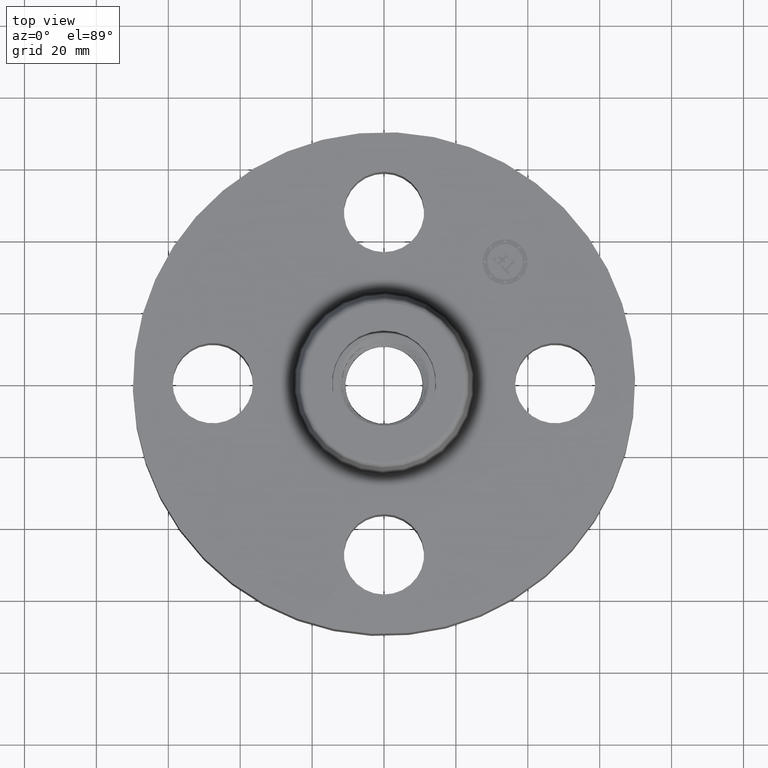
[diagram: clean part render]
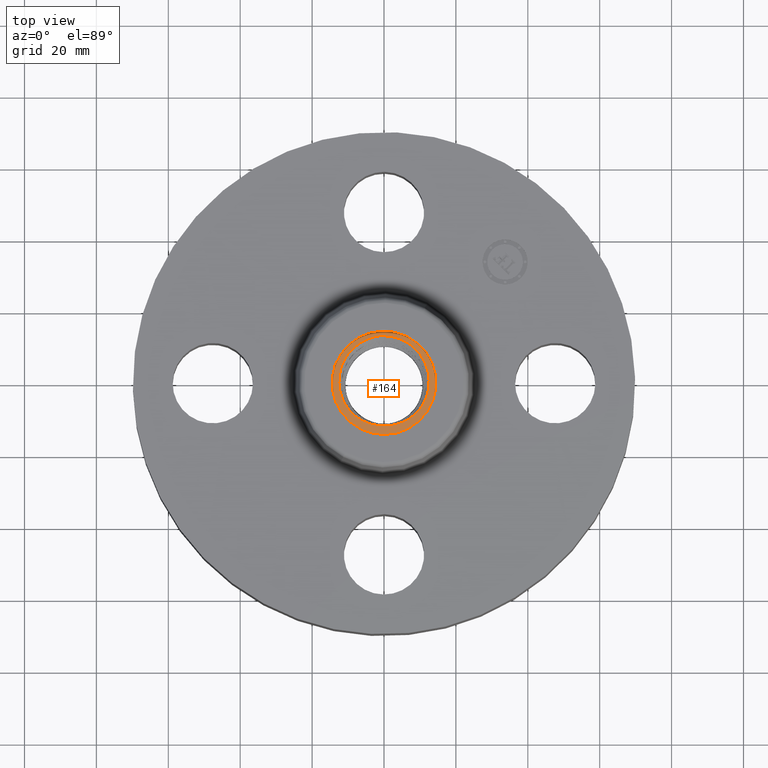
[diagram: same view with one face highlighted and labeled with its STEP entity id]
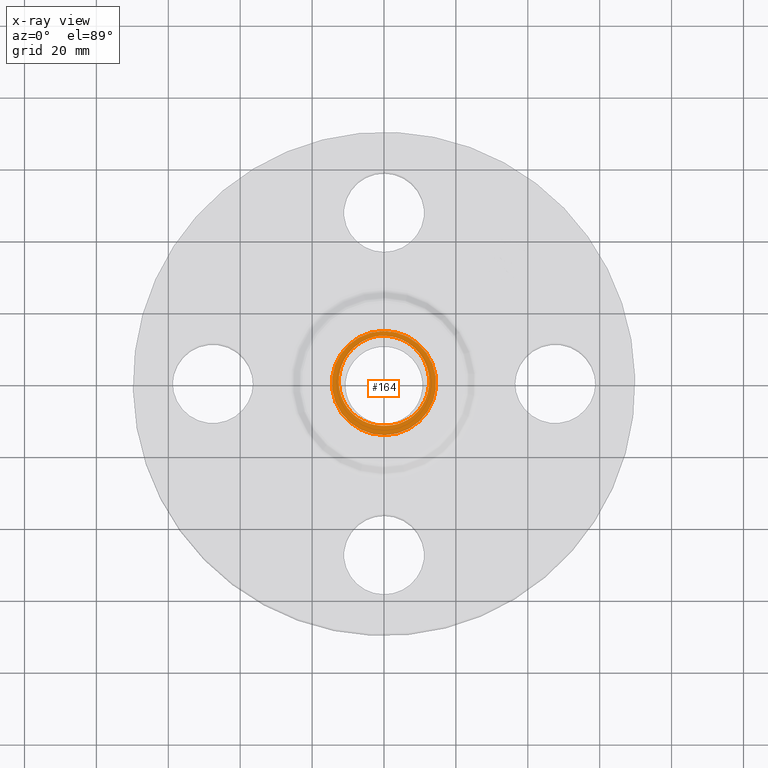
[diagram: x-ray of the same camera — body ghosted, the highlighted face saturated]
A machine part, top view. The second image highlights one B-rep face of the part: STEP entity #164.
The next image is the same camera in x-ray: the body ghosted, the highlighted face saturated — about 0% of this face is hidden behind the body in this view.
In plain terms, the highlighted planar face has unit normal (0, 0, 1).
Its self-contained STEP definition (entity closure, byte-faithful):
#38=AXIS2_PLACEMENT_3D('Plane Axis2P3D',#35,#36,#37) ;
#42=AXIS2_PLACEMENT_3D('Circle Axis2P3D',#40,#41,$) ;
#51=AXIS2_PLACEMENT_3D('Circle Axis2P3D',#49,#50,$) ;
#60=AXIS2_PLACEMENT_3D('Circle Axis2P3D',#58,#59,$) ;
#35=CARTESIAN_POINT('Axis2P3D Location',(1.92322098754E-017,-2.08057543197E-016,1.25000000001)) ;
#40=CARTESIAN_POINT('Axis2P3D Location',(0.,0.,1.25000000001)) ;
#44=CARTESIAN_POINT('Vertex',(-0.273272557005,0.50022206028,1.25000000001)) ;
#46=CARTESIAN_POINT('Vertex',(0.273272557005,-0.50022206028,1.25000000001)) ;
#49=CARTESIAN_POINT('Axis2P3D Location',(0.,0.,1.25000000001)) ;
#58=CARTESIAN_POINT('Axis2P3D Location',(1.92322098754E-017,5.41998641943E-017,1.25000000001)) ;
#62=CARTESIAN_POINT('Vertex',(-0.069043755093,-0.462157820787,1.25000036754)) ;
#64=CARTESIAN_POINT('Vertex',(-0.000953108757653,-0.467285750138,1.25000000001)) ;
#68=CARTESIAN_POINT('Control Point',(-0.246883430185,0.451920611165,1.25000000001)) ;
#69=CARTESIAN_POINT('Control Point',(-0.286897724203,0.428091763057,1.25000000001)) ;
#70=CARTESIAN_POINT('Control Point',(-0.324134169975,0.399785227268,1.25000000001)) ;
#71=CARTESIAN_POINT('Control Point',(-0.357909104599,0.36742416239,1.25000000001)) ;
#72=CARTESIAN_POINT('Control Point',(-0.417390379093,0.295739700007,1.25000000001)) ;
#73=CARTESIAN_POINT('Control Point',(-0.459012665642,0.21286924273,1.25000000001)) ;
#74=CARTESIAN_POINT('Control Point',(-0.474939782131,0.16930091329,1.25000000001)) ;
#75=CARTESIAN_POINT('Control Point',(-0.494318450662,0.0884711821617,1.25000000001)) ;
#76=CARTESIAN_POINT('Control Point',(-0.496710872129,0.00589266615743,1.25000000001)) ;
#77=CARTESIAN_POINT('Control Point',(-0.494375922961,-0.0307412633544,1.25000000001)) ;
#78=CARTESIAN_POINT('Control Point',(-0.481550265398,-0.11206760184,1.25000000001)) ;
#79=CARTESIAN_POINT('Control Point',(-0.45225368202,-0.188866051039,1.25000000001)) ;
#80=CARTESIAN_POINT('Control Point',(-0.431112138718,-0.229337549376,1.25000000001)) ;
#81=CARTESIAN_POINT('Control Point',(-0.379905218033,-0.304441645071,1.25000000001)) ;
#82=CARTESIAN_POINT('Control Point',(-0.313085121036,-0.365392443357,1.25000000001)) ;
#83=CARTESIAN_POINT('Control Point',(-0.276305968872,-0.391734967362,1.25000000001)) ;
#84=CARTESIAN_POINT('Control Point',(-0.213661402662,-0.426235944096,1.25000000001)) ;
#85=CARTESIAN_POINT('Control Point',(-0.14626281003,-0.448323531957,1.25000000001)) ;
#86=CARTESIAN_POINT('Control Point',(-0.12079463011,-0.454743007814,1.25000000001)) ;
#87=CARTESIAN_POINT('Control Point',(-0.0949981555998,-0.459359117343,1.25000000001)) ;
#88=CARTESIAN_POINT('Control Point',(-0.0690436609498,-0.462157279014,1.25000000001)) ;
#89=CARTESIAN_POINT('Vertex',(-0.246883430185,0.451920611165,1.25000000001)) ;
#93=CARTESIAN_POINT('Control Point',(-0.0411590649464,0.521391738518,1.25000000001)) ;
#94=CARTESIAN_POINT('Control Point',(-0.084780387246,0.516338560481,1.25000000001)) ;
#95=CARTESIAN_POINT('Control Point',(-0.127791711527,0.506712832902,1.25000000001)) ;
#96=CARTESIAN_POINT('Control Point',(-0.169559055763,0.492597901499,1.25000000001)) ;
#97=CARTESIAN_POINT('Control Point',(-0.20943757827,0.474219930551,1.25000000001)) ;
#98=CARTESIAN_POINT('Control Point',(-0.246883430185,0.451920611165,1.25000000001)) ;
#99=CARTESIAN_POINT('Vertex',(-0.0411590649466,0.521391738515,1.25000000001)) ;
#103=CARTESIAN_POINT('Control Point',(-0.0411590649466,0.521391738515,1.25000000001)) ;
#104=CARTESIAN_POINT('Control Point',(-0.0329293166189,0.521768362311,1.25000000001)) ;
#105=CARTESIAN_POINT('Control Point',(-0.0246946715107,0.521982723134,1.25000000001)) ;
#106=CARTESIAN_POINT('Control Point',(-0.016453769435,0.522034670379,1.25000000001)) ;
#107=CARTESIAN_POINT('Control Point',(-0.00822211465775,0.521924166083,1.25000000001)) ;
#108=CARTESIAN_POINT('Control Point',(1.67093873363E-006,0.521651506824,1.25000000001)) ;
#109=CARTESIAN_POINT('Vertex',(1.67093873361E-006,0.521651506824,1.25000000001)) ;
#113=CARTESIAN_POINT('Control Point',(1.67093873359E-006,0.521651506824,1.25000000001)) ;
#114=CARTESIAN_POINT('Control Point',(0.0468493272757,0.520098274976,1.25000000001)) ;
#115=CARTESIAN_POINT('Control Point',(0.0934415772297,0.513282925844,1.25000000001)) ;
#116=CARTESIAN_POINT('Control Point',(0.138981236129,0.501241992646,1.25000000001)) ;
#117=CARTESIAN_POINT('Control Point',(0.226389626153,0.467153779137,1.25000000001)) ;
#118=CARTESIAN_POINT('Control Point',(0.303671347867,0.4145807276,1.25000000001)) ;
#119=CARTESIAN_POINT('Control Point',(0.339089091054,0.384049832394,1.25000000001)) ;
#120=CARTESIAN_POINT('Control Point',(0.402222768545,0.315611593362,1.25000000001)) ;
#121=CARTESIAN_POINT('Control Point',(0.448151536437,0.234985221503,1.25000000001)) ;
#122=CARTESIAN_POINT('Control Point',(0.466347280658,0.192284690325,1.25000000001)) ;
#123=CARTESIAN_POINT('Control Point',(0.492562464577,0.103646621699,1.25000000001)) ;
#124=CARTESIAN_POINT('Control Point',(0.49793964561,0.0117346766563,1.25000000001)) ;
#125=CARTESIAN_POINT('Control Point',(0.495292595151,-0.0342253855221,1.25000000001)) ;
#126=CARTESIAN_POINT('Control Point',(0.479459552539,-0.124516646153,1.25000000001)) ;
#127=CARTESIAN_POINT('Control Point',(0.443535279305,-0.208439267194,1.25000000001)) ;
#128=CARTESIAN_POINT('Control Point',(0.420791058054,-0.248042558389,1.25000000001)) ;
#129=CARTESIAN_POINT('Control Point',(0.373347628436,-0.311981402951,1.25000000001)) ;
#130=CARTESIAN_POINT('Control Point',(0.31431173849,-0.364651395036,1.25000000001)) ;
#131=CARTESIAN_POINT('Control Point',(0.287099876162,-0.384918859976,1.25000000001)) ;
#132=CARTESIAN_POINT('Control Point',(0.25828533631,-0.402653965913,1.25000000001)) ;
#133=CARTESIAN_POINT('Control Point',(0.228189098875,-0.417703174313,1.25000000001)) ;
#134=CARTESIAN_POINT('Vertex',(0.228189098875,-0.417703174313,1.25000000001)) ;
#138=CARTESIAN_POINT('Control Point',(0.228189098875,-0.417703174313,1.25000000001)) ;
#139=CARTESIAN_POINT('Control Point',(0.185782106105,-0.438908205897,1.25000000001)) ;
#140=CARTESIAN_POINT('Control Point',(0.140830377788,-0.454780659241,1.25000000001)) ;
#141=CARTESIAN_POINT('Control Point',(0.0942024331418,-0.464899782295,1.25000000001)) ;
#142=CARTESIAN_POINT('Control Point',(0.0469340510209,-0.469059157352,1.25000000001)) ;
#143=CARTESIAN_POINT('Control Point',(-3.28525675339E-006,-0.467321873785,1.25000000001)) ;
#144=CARTESIAN_POINT('Vertex',(-3.28525675336E-006,-0.467321873785,1.25000000001)) ;
#148=CARTESIAN_POINT('Control Point',(-3.28525675331E-006,-0.467321873785,1.25000000001)) ;
#149=CARTESIAN_POINT('Control Point',(-0.000193260792573,-0.467314842253,1.25000000001)) ;
#150=CARTESIAN_POINT('Control Point',(-0.000383230902382,-0.467307714121,1.25000000001)) ;
#151=CARTESIAN_POINT('Control Point',(-0.000573195596801,-0.467300489387,1.25000000001)) ;
#152=CARTESIAN_POINT('Control Point',(-0.000763154880365,-0.467293168049,1.25000000001)) ;
#153=CARTESIAN_POINT('Control Point',(-0.000953108751834,-0.467285750105,1.25000000001)) ;
#36=DIRECTION('Axis2P3D Direction',(0.,0.,0.0393700787402)) ;
#37=DIRECTION('Axis2P3D XDirection',(0.0393700787402,0.,0.)) ;
#41=DIRECTION('Axis2P3D Direction',(0.,0.,0.0393700787402)) ;
#50=DIRECTION('Axis2P3D Direction',(0.,0.,0.0393700787402)) ;
#59=DIRECTION('Axis2P3D Direction',(0.,0.,0.0393700787402)) ;
#55=ORIENTED_EDGE('',*,*,#48,.T.) ;
#56=ORIENTED_EDGE('',*,*,#53,.T.) ;
#156=ORIENTED_EDGE('',*,*,#66,.F.) ;
#157=ORIENTED_EDGE('',*,*,#91,.F.) ;
#158=ORIENTED_EDGE('',*,*,#101,.F.) ;
#159=ORIENTED_EDGE('',*,*,#111,.T.) ;
#160=ORIENTED_EDGE('',*,*,#136,.T.) ;
#161=ORIENTED_EDGE('',*,*,#146,.T.) ;
#162=ORIENTED_EDGE('',*,*,#154,.T.) ;
#163=FACE_BOUND('',#155,.T.) ;
#164=ADVANCED_FACE('PartBody',(#57,#163),#39,.T.) ;
#67=B_SPLINE_CURVE_WITH_KNOTS('',5,(#68,#69,#70,#71,#72,#73,#74,#75,#76,#77,#78,#79,#80,#81,#82,#83,#84,#85,#86,#87,#88),.UNSPECIFIED.,.F.,.U.,(6,3,3,3,3,3,6),(0.,8.21041115469,16.4250512122,22.9958663818,31.2089610701,39.4288229358,44.2672561024),.UNSPECIFIED.) ;
#92=B_SPLINE_CURVE_WITH_KNOTS('',5,(#93,#94,#95,#96,#97,#98),.UNSPECIFIED.,.F.,.U.,(6,6),(0.,7.68340034953),.UNSPECIFIED.) ;
#102=B_SPLINE_CURVE_WITH_KNOTS('',5,(#103,#104,#105,#106,#107,#108),.UNSPECIFIED.,.F.,.U.,(6,6),(0.,1.44140965825),.UNSPECIFIED.) ;
#112=B_SPLINE_CURVE_WITH_KNOTS('',5,(#113,#114,#115,#116,#117,#118,#119,#120,#121,#122,#123,#124,#125,#126,#127,#128,#129,#130,#131,#132,#133),.UNSPECIFIED.,.F.,.U.,(6,3,3,3,3,3,6),(0.,8.21114114697,16.4232580236,24.6302935075,32.8342465126,41.0404873828,47.2035236124),.UNSPECIFIED.) ;
#137=B_SPLINE_CURVE_WITH_KNOTS('',5,(#138,#139,#140,#141,#142,#143),.UNSPECIFIED.,.F.,.U.,(6,6),(0.,8.6840035364),.UNSPECIFIED.) ;
#147=B_SPLINE_CURVE_WITH_KNOTS('',5,(#148,#149,#150,#151,#152,#153),.UNSPECIFIED.,.F.,.U.,(6,6),(0.,0.035147887711),.UNSPECIFIED.) ;
#43=CIRCLE('generated circle',#42,0.570000000002) ;
#52=CIRCLE('generated circle',#51,0.570000000002) ;
#61=CIRCLE('generated circle',#60,0.46728672215) ;
#48=EDGE_CURVE('',#45,#47,#43,.T.) ;
#53=EDGE_CURVE('',#47,#45,#52,.T.) ;
#66=EDGE_CURVE('',#63,#65,#61,.T.) ;
#91=EDGE_CURVE('',#90,#63,#67,.T.) ;
#101=EDGE_CURVE('',#100,#90,#92,.T.) ;
#111=EDGE_CURVE('',#100,#110,#102,.T.) ;
#136=EDGE_CURVE('',#110,#135,#112,.T.) ;
#146=EDGE_CURVE('',#135,#145,#137,.T.) ;
#154=EDGE_CURVE('',#145,#65,#147,.T.) ;
#54=EDGE_LOOP('',(#55,#56)) ;
#155=EDGE_LOOP('',(#156,#157,#158,#159,#160,#161,#162)) ;
#57=FACE_OUTER_BOUND('',#54,.T.) ;
#39=PLANE('',#38) ;
#45=VERTEX_POINT('',#44) ;
#47=VERTEX_POINT('',#46) ;
#63=VERTEX_POINT('',#62) ;
#65=VERTEX_POINT('',#64) ;
#90=VERTEX_POINT('',#89) ;
#100=VERTEX_POINT('',#99) ;
#110=VERTEX_POINT('',#109) ;
#135=VERTEX_POINT('',#134) ;
#145=VERTEX_POINT('',#144) ;